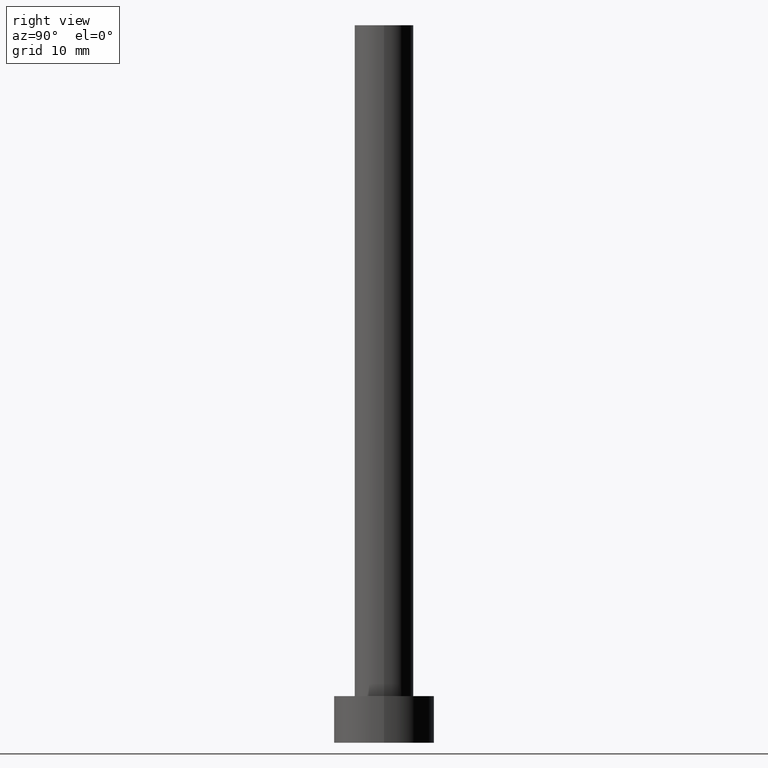
[diagram: clean part render]
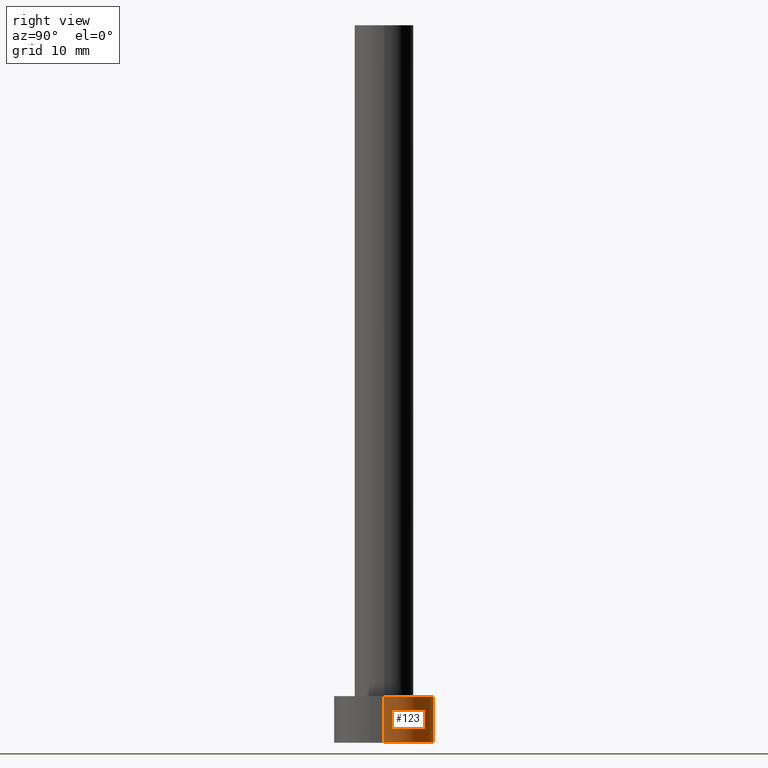
[diagram: same view with one face highlighted and labeled with its STEP entity id]
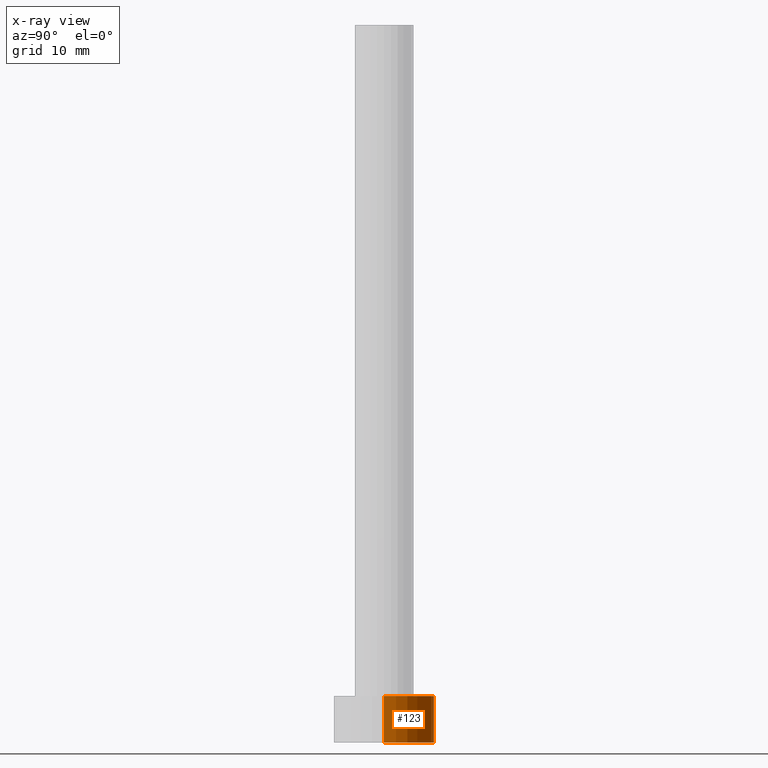
[diagram: x-ray of the same camera — body ghosted, the highlighted face saturated]
A machine part, right view. The second image highlights one B-rep face of the part: STEP entity #123.
The next image is the same camera in x-ray: the body ghosted, the highlighted face saturated — about 0% of this face is hidden behind the body in this view.
In plain terms, the highlighted cylindrical surface (partial cylindrical patch) has radius 7 mm, axis along (-0, -0, -1).
Its self-contained STEP definition (entity closure, byte-faithful):
#3 = VERTEX_POINT ( 'NONE', #18 ) ;
#4 = CARTESIAN_POINT ( 'NONE',  ( -7.000000000000000000, 0.000000000000000000, 6.500000000000000000 ) ) ;
#5 = VERTEX_POINT ( 'NONE', #59 ) ;
#18 = CARTESIAN_POINT ( 'NONE',  ( 7.000000000000000000, 8.572527594031471218E-16, 0.000000000000000000 ) ) ;
#27 = ORIENTED_EDGE ( 'NONE', *, *, #57, .F. ) ;
#37 = DIRECTION ( 'NONE',  ( -1.000000000000000000, 0.000000000000000000, 0.000000000000000000 ) ) ;
#38 = DIRECTION ( 'NONE',  ( 0.000000000000000000, 0.000000000000000000, 1.000000000000000000 ) ) ;
#50 = CARTESIAN_POINT ( 'NONE',  ( 0.000000000000000000, 0.000000000000000000, 6.500000000000000000 ) ) ;
#52 = FACE_OUTER_BOUND ( 'NONE', #55, .T. ) ;
#55 = EDGE_LOOP ( 'NONE', ( #84, #165, #56, #27 ) ) ;
#56 = ORIENTED_EDGE ( 'NONE', *, *, #100, .T. ) ;
#57 = EDGE_CURVE ( 'NONE', #227, #5, #105, .T. ) ;
#59 = CARTESIAN_POINT ( 'NONE',  ( -7.000000000000000000, 0.000000000000000000, 0.000000000000000000 ) ) ;
#65 = VECTOR ( 'NONE', #68, 1000.000000000000000 ) ;
#68 = DIRECTION ( 'NONE',  ( -0.000000000000000000, -0.000000000000000000, -1.000000000000000000 ) ) ;
#74 = CARTESIAN_POINT ( 'NONE',  ( 0.000000000000000000, 0.000000000000000000, 0.000000000000000000 ) ) ;
#84 = ORIENTED_EDGE ( 'NONE', *, *, #221, .F. ) ;
#90 = CIRCLE ( 'NONE', #134, 7.000000000000000000 ) ;
#100 = EDGE_CURVE ( 'NONE', #3, #5, #215, .T. ) ;
#105 = LINE ( 'NONE', #126, #65 ) ;
#106 = AXIS2_PLACEMENT_3D ( 'NONE', #74, #38, #176 ) ;
#112 = CARTESIAN_POINT ( 'NONE',  ( 7.000000000000000000, 8.572527594031471218E-16, 6.500000000000000000 ) ) ;
#119 = CARTESIAN_POINT ( 'NONE',  ( 0.000000000000000000, 0.000000000000000000, 6.500000000000000000 ) ) ;
#123 = ADVANCED_FACE ( 'NONE', ( #52 ), #254, .T. ) ;
#126 = CARTESIAN_POINT ( 'NONE',  ( -7.000000000000000000, 0.000000000000000000, 6.500000000000000000 ) ) ;
#134 = AXIS2_PLACEMENT_3D ( 'NONE', #119, #161, #158 ) ;
#135 = EDGE_CURVE ( 'NONE', #244, #3, #150, .T. ) ;
#140 = AXIS2_PLACEMENT_3D ( 'NONE', #50, #152, #37 ) ;
#147 = DIRECTION ( 'NONE',  ( -0.000000000000000000, -0.000000000000000000, -1.000000000000000000 ) ) ;
#150 = LINE ( 'NONE', #112, #252 ) ;
#152 = DIRECTION ( 'NONE',  ( -0.000000000000000000, -0.000000000000000000, -1.000000000000000000 ) ) ;
#158 = DIRECTION ( 'NONE',  ( 1.000000000000000000, 0.000000000000000000, 0.000000000000000000 ) ) ;
#161 = DIRECTION ( 'NONE',  ( 0.000000000000000000, 0.000000000000000000, 1.000000000000000000 ) ) ;
#165 = ORIENTED_EDGE ( 'NONE', *, *, #135, .T. ) ;
#176 = DIRECTION ( 'NONE',  ( 1.000000000000000000, 0.000000000000000000, 0.000000000000000000 ) ) ;
#207 = CARTESIAN_POINT ( 'NONE',  ( 7.000000000000000000, 8.572527594031471218E-16, 6.500000000000000000 ) ) ;
#215 = CIRCLE ( 'NONE', #106, 7.000000000000000000 ) ;
#221 = EDGE_CURVE ( 'NONE', #244, #227, #90, .T. ) ;
#227 = VERTEX_POINT ( 'NONE', #4 ) ;
#244 = VERTEX_POINT ( 'NONE', #207 ) ;
#252 = VECTOR ( 'NONE', #147, 1000.000000000000000 ) ;
#254 = CYLINDRICAL_SURFACE ( 'NONE', #140, 7.000000000000000000 ) ;